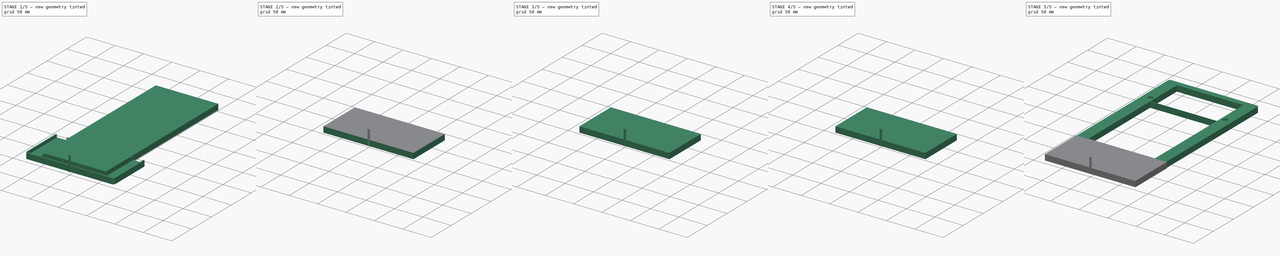
[diagram: build sequence overview — one tinted view per stage of 5, left to right]
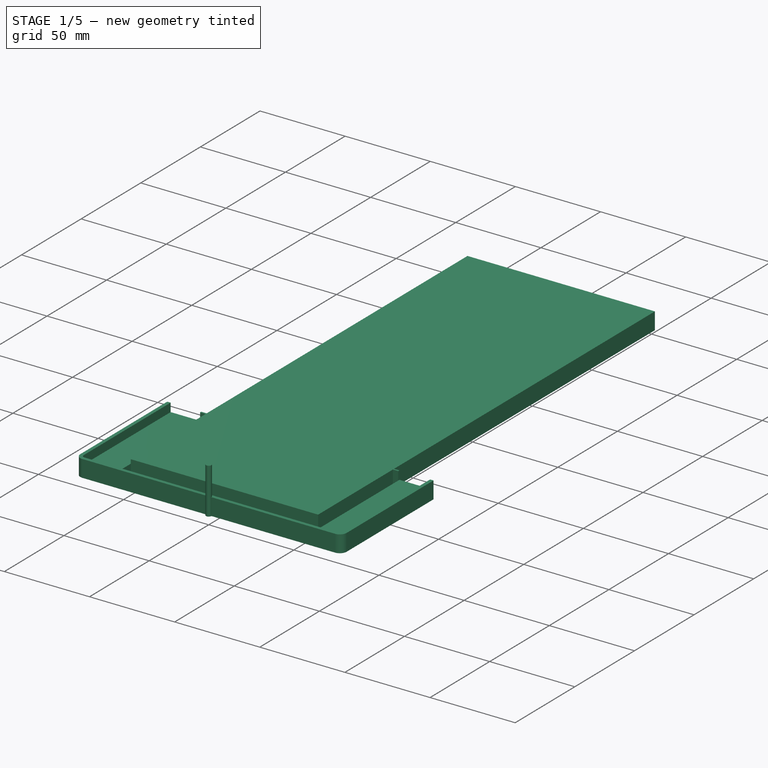
[diagram: stage 1 of 5 — iso view after this stage's code; geometry added in this stage tinted green]
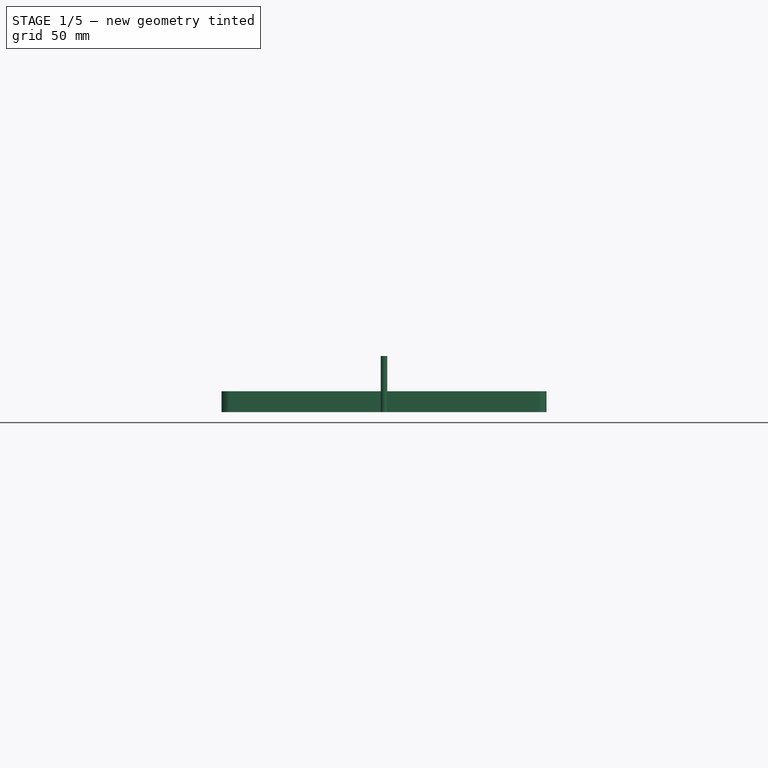
[diagram: stage 1 of 5 — front view after this stage's code; geometry added in this stage tinted green]
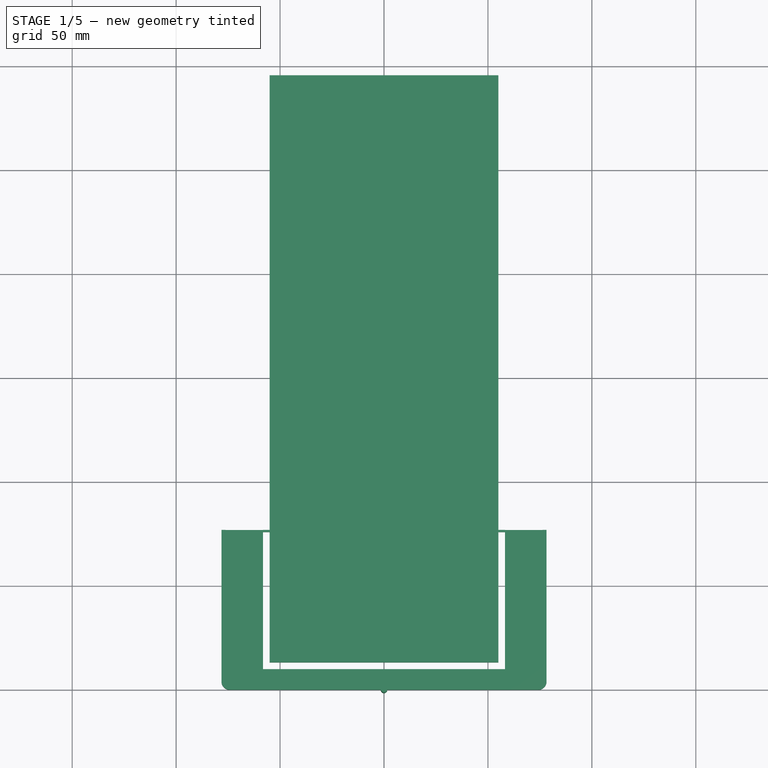
[diagram: stage 1 of 5 — top view after this stage's code; geometry added in this stage tinted green]
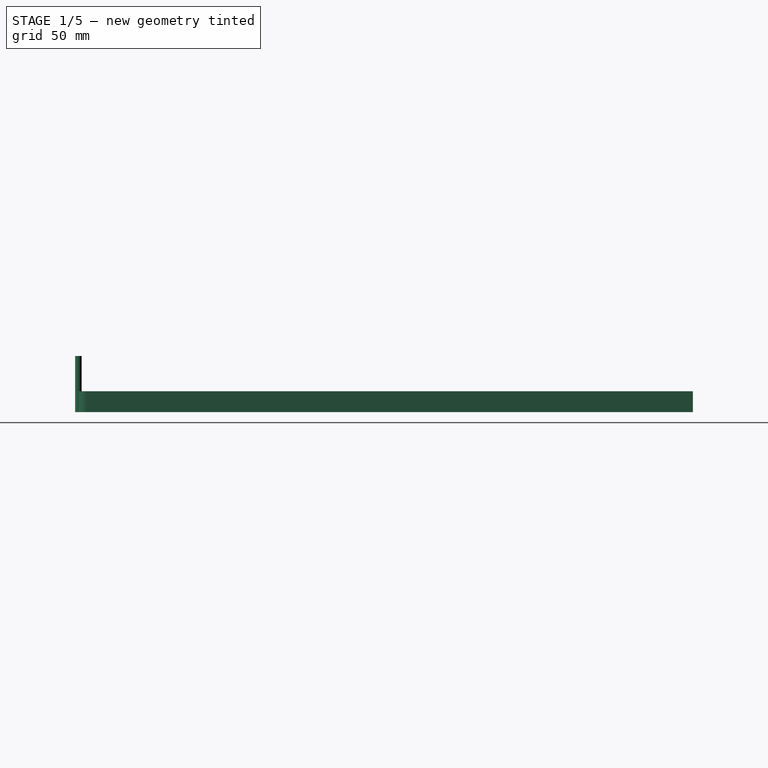
[diagram: stage 1 of 5 — right view after this stage's code; geometry added in this stage tinted green]
FCSTD DOCUMENT  (FreeCAD 0.22R36958 (Git))
Label: Frame-CNC-back
License: All rights reserved
LicenseURL: http://en.wikipedia.org/wiki/All_rights_reserved
objects: Part::FeaturePython×14, Path::FeaturePython×14, Sketcher::SketchObject×5, PartDesign::Pad×4, PartDesign::Body×4, App::DocumentObjectGroup×3, Part::Part2DObjectPython×2, Spreadsheet::Sheet×1, PartDesign::Pocket×1, PartDesign::AdditiveBox×1, App::FeaturePython×1, App::MeasureDistance×1
note: 38 computed .brp shape members not serialized (recipe doc carries the construction recipe); baked Part::Feature solids carry a one-line shape summary decoded from their .brp

FEATURE [PartDesign::Body] Body003
  Group = -> [Sketch003,Pad003]
  Origin = -> Origin003
  Tip = -> Pad003
FEATURE [PartDesign::Pad] Pad
  Direction = (0,0,1)
  Length = 10
  Length2 = 10
  Profile = -> Sketch
  ReferenceAxis = -> Sketch [N_Axis]
  Suppressed = false
  Type = 0
FEATURE [Sketcher::SketchObject] Sketch004
  AttachmentSupport = -> [Pad]
  ExternalGeometry = -> [Pad]
  FullyConstrained = true
  MapMode = 5
  Placement = pos=(0,0,10) rot=(0,0,1;0rad)
  expr: Constraints[22] = <<vars>>.back_edge
  expr: Constraints[23] = <<vars>>.back_edge
  expr: Constraints[29] = <<vars>>.back_edge
  sketch-geometry (10):
    g0: LineSegment StartX=-58.2 StartY=76.9 StartZ=0 EndX=-76.2 EndY=76.9 EndZ=0
    g1: LineSegment StartX=-76.2 StartY=76.9 StartZ=0 EndX=-76.2 EndY=4 EndZ=0
    g2: ArcOfCircle CenterX=-74.2 CenterY=4 CenterZ=0 NormalX=0 NormalY=0 NormalZ=1 AngleXU=0 Radius=2 StartAngle=3.14159 EndAngle=4.71239
    g3: LineSegment StartX=-74.2 StartY=2 StartZ=0 EndX=74.2 EndY=2 EndZ=0
    g4: ArcOfCircle CenterX=74.2 CenterY=4 CenterZ=0 NormalX=0 NormalY=0 NormalZ=1 AngleXU=0 Radius=2 StartAngle=4.71239 EndAngle=6.28319
    g5: LineSegment StartX=76.2 StartY=4 StartZ=0 EndX=76.2 EndY=76.9 EndZ=0
    g6: LineSegment StartX=76.2 StartY=76.9 StartZ=0 EndX=58.2 EndY=76.9 EndZ=0
    g7: LineSegment StartX=58.2 StartY=76.9 StartZ=0 EndX=58.2 EndY=10 EndZ=0
    g8: LineSegment StartX=58.2 StartY=10 StartZ=0 EndX=-58.2 EndY=10 EndZ=0
    g9: LineSegment StartX=-58.2 StartY=10 StartZ=0 EndX=-58.2 EndY=76.9 EndZ=0
  constraints (30):
    c: Horizontal(g0)
    c: Coincident(g0,g1)
    c: Vertical(g1)
    c: Tangent(g1,g2) = -1.5708
    c: Coincident(g2,g3)
    c: Horizontal(g3)
    c: Tangent(g3,g4) = -1.5708
    c: Coincident(g4,g5)
    c: Vertical(g5)
    c: Coincident(g5,g6)
    c: Horizontal(g6)
    c: Coincident(g6,g7)
    c: Vertical(g7)
    c: Coincident(g7,g8)
    c: Horizontal(g8)
    c: Coincident(g8,g9)
    c: Coincident(g9,g0)
    c: Vertical(g9)
    c: Horizontal(g1,g-5)
    c: Vertical(g2,g-6)
    c: Vertical(g-7,g3)
    c: Horizontal(g-8,g4)
    c: Distance(g-6,g2) = 2
    c: Distance(g-8,g4) = 2
    c: PointOnObject(g6,g-3)
    c: PointOnObject(g6,g-9)
    c: PointOnObject(g0,g-11)
    c: PointOnObject(g0,g-3)
    c: PointOnObject(g8,g-10)
    c: Distance(g-5,g1) = 2
FEATURE [PartDesign::Pocket] Pocket
  BaseFeature = -> Pad
  Direction = (0,0,-1)
  Length = 5
  Length2 = 5
  Profile = -> Sketch004
  ReferenceAxis = -> Sketch004 [N_Axis]
  Suppressed = false
  Type = 0
FEATURE [PartDesign::AdditiveBox] Box
  AttacherType = Attacher::AttachEngine3D
  AttachmentOffset = pos=(-55.025,13.175,0) rot=(0,0,1;0rad)
  AttachmentSupport = -> [XY_Plane]
  BaseFeature = -> Pocket
  Height = 10
  Length = 110.05
  MapMode = 5
  Placement = pos=(-55.025,13.175,0) rot=(0,0,1;0rad)
  Suppressed = false
  Width = 282.45
  expr: .AttachmentOffset.Base.x = -<<vars>>.width / 2 + <<vars>>.top_banner_width + <<vars>>.bit_size
  expr: .AttachmentOffset.Base.y = <<vars>>.reference_point - <<vars>>.length + <<vars>>.side_width + <<vars>>.bit_size
  expr: Height = <<vars>>.height
  expr: Length = <<vars>>.width - <<vars>>.top_banner_width - <<vars>>.bottom_banner_width - <<vars>>.bit_size * 2
  expr: Width = <<vars>>.length - <<vars>>.side_width * 2 - <<vars>>.bit_size * 2
FEATURE [Path::FeaturePython] __0mm_Endmill003  label="3.0mm_Endmill001"  # Path/CAM operation (typed FeaturePython)
  HorizFeed = 3.33333
  HorizRapid = 0
  SpindleDir = 0
  SpindleSpeed = 2000
  Tool = -> ToolBit010
  ToolNumber = 13
  VertFeed = 3.33333
  VertRapid = 0
  expr: HorizRapid = SetupSheet.HorizRapid
  expr: VertRapid = SetupSheet.VertRapid
FEATURE [Part::FeaturePython] ToolBit011  label="3.175mm_endmill009"  # Path/CAM toolbit (typed FeaturePython)
  BitPropertyNames = Chipload | CuttingEdgeHeight | Diameter | Flutes | Length | Material | ShankDiameter | SpindleDirection
  BitShape = /private/var/folders/4z/cpn_82wx3qz0m4lfqxz9fps80000gn/T/AppTranslocation/C237E315-4526-4725-9325-06C9AD00EF50/d/FreeCAD.app/Contents/Resources/Mod/CAM/Tools/Shape/endmill.fcstd
  Chipload = 0
  CuttingEdgeHeight = 10
  Diameter = 3.17
  Flutes = 0
  Length = 27
  Material = 0
  ShankDiameter = 3.17
  ShapeName = endmill
  SpindleDirection = 0
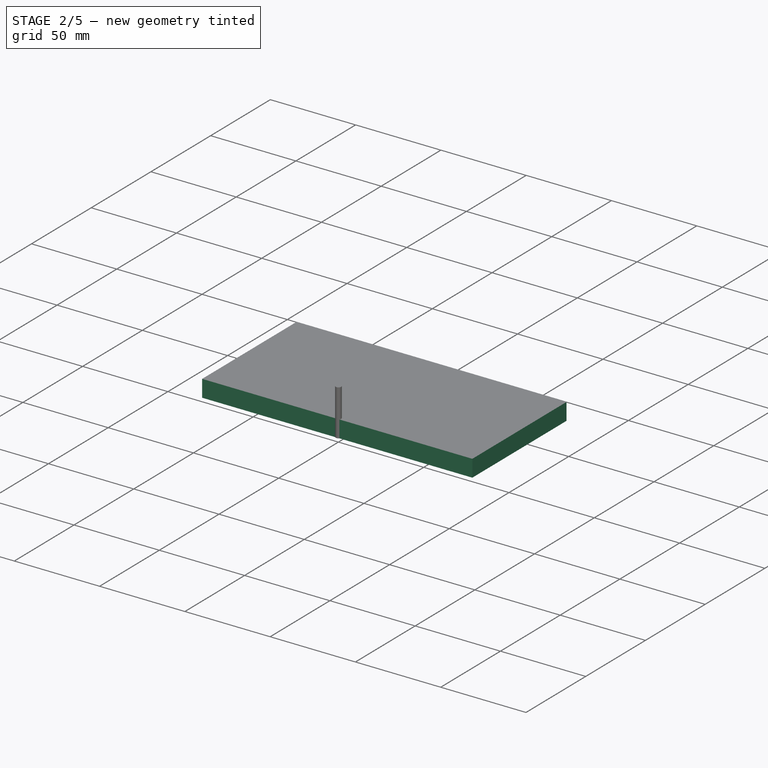
[diagram: stage 2 of 5 — iso view after this stage's code; geometry added in this stage tinted green]
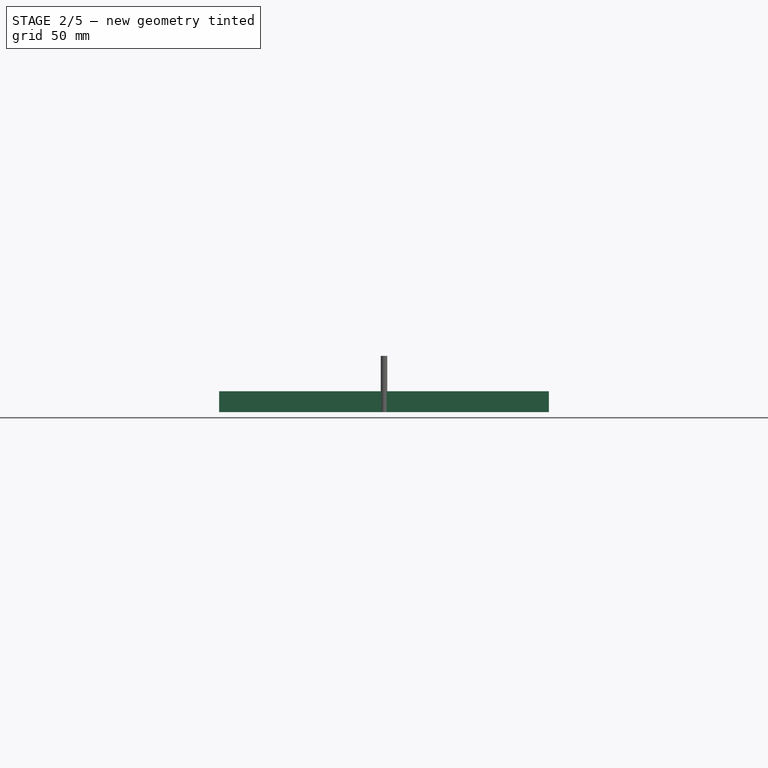
[diagram: stage 2 of 5 — front view after this stage's code; geometry added in this stage tinted green]
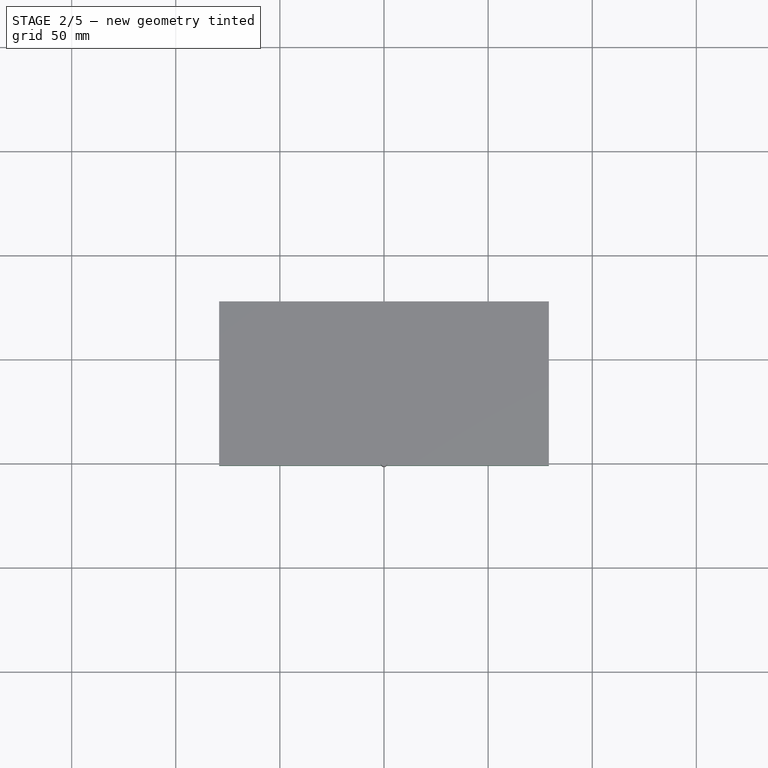
[diagram: stage 2 of 5 — top view after this stage's code; geometry added in this stage tinted green]
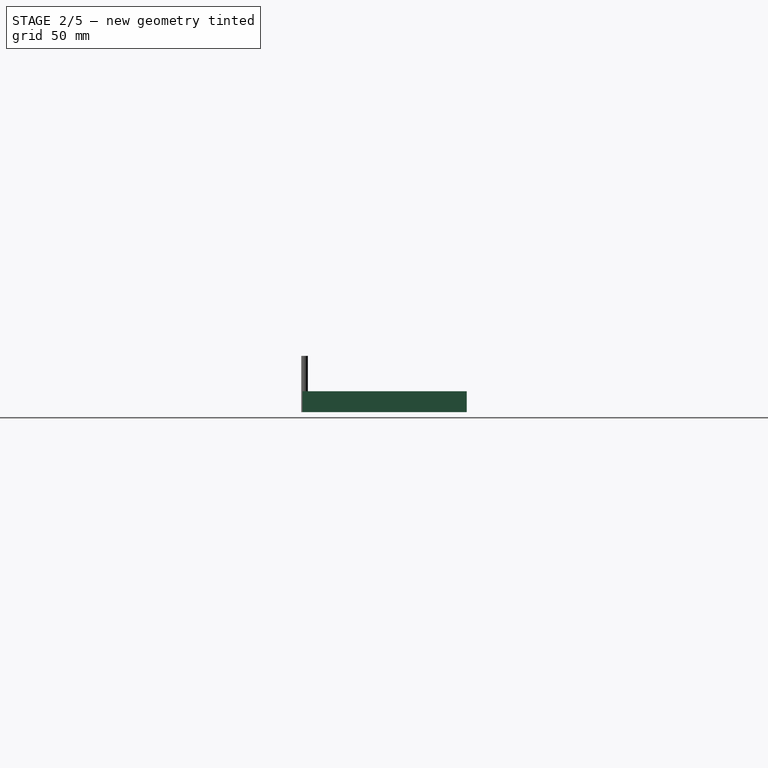
[diagram: stage 2 of 5 — right view after this stage's code; geometry added in this stage tinted green]
FEATURE [PartDesign::Body] Body
  Group = -> [Sketch,Pad,Sketch004,Pocket,Box]
  Origin = -> Origin
  Tip = -> Pocket
FEATURE [App::FeaturePython] SetupSheet  # Path/CAM operation (typed FeaturePython)
  ClearanceHeightExpression = OpStockZMax+SetupSheet.ClearanceHeightOffset
  ClearanceHeightOffset = 5
  CoolantMode = 0
  CoolantModes = None | Flood | Mist
  FinalDepthExpression = OpFinalDepth
  HorizRapid = 0
  SafeHeightExpression = OpStockZMax+SetupSheet.SafeHeightOffset
  SafeHeightOffset = 3
  StartDepthExpression = OpStartDepth
  StepDownExpression = OpToolDiameter
  VertRapid = 0
FEATURE [Part::FeaturePython] Clone  label="Model-Body"  # Draft clone (typed FeaturePython)
  AttacherType = Attacher::AttachEngine3D
  Fuse = false
  Objects = -> [Body]
  PathResource = Model
  Scale = (1,1,1)
FEATURE [Path::FeaturePython] __6mm_Endmill  label="2.6mm_Endmill001"  # Path/CAM operation (typed FeaturePython)
  HorizFeed = 3.33333
  HorizRapid = 0
  SpindleDir = 0
  SpindleSpeed = 2000
  Tool = -> ToolBit008
  ToolNumber = 11
  VertFeed = 3.33333
  VertRapid = 0
  expr: HorizRapid = SetupSheet.HorizRapid
  expr: VertRapid = SetupSheet.VertRapid
FEATURE [Part::FeaturePython] ToolBit009  label="2.8mm_Endmill"  # Path/CAM toolbit (typed FeaturePython)
  BitPropertyNames = Chipload | CuttingEdgeHeight | Diameter | Flutes | Length | Material | ShankDiameter | SpindleDirection
  BitShape = /private/var/folders/4z/cpn_82wx3qz0m4lfqxz9fps80000gn/T/AppTranslocation/C237E315-4526-4725-9325-06C9AD00EF50/d/FreeCAD.app/Contents/Resources/Mod/CAM/Tools/Shape/endmill.fcstd
  Chipload = 0
  CuttingEdgeHeight = 10
  Diameter = 2.8
  Flutes = 0
  Length = 27
  Material = 0
  ShankDiameter = 3.17
  ShapeName = endmill
  SpindleDirection = 0
FEATURE [Path::FeaturePython] __8mm_Endmill003  label="2.8mm_Endmill001"  # Path/CAM operation (typed FeaturePython)
  HorizFeed = 3.33333
  HorizRapid = 0
  SpindleDir = 0
  SpindleSpeed = 2000
  Tool = -> ToolBit009
  ToolNumber = 12
  VertFeed = 3.33333
  VertRapid = 0
  expr: HorizRapid = SetupSheet.HorizRapid
  expr: VertRapid = SetupSheet.VertRapid
FEATURE [Part::FeaturePython] ToolBit010  label="3.0mm_Endmill"  # Path/CAM toolbit (typed FeaturePython)
  BitPropertyNames = Chipload | CuttingEdgeHeight | Diameter | Flutes | Length | Material | ShankDiameter | SpindleDirection
  BitShape = /private/var/folders/4z/cpn_82wx3qz0m4lfqxz9fps80000gn/T/AppTranslocation/C237E315-4526-4725-9325-06C9AD00EF50/d/FreeCAD.app/Contents/Resources/Mod/CAM/Tools/Shape/endmill.fcstd
  Chipload = 0
  CuttingEdgeHeight = 10
  Diameter = 3
  Flutes = 0
  Length = 27
  Material = 0
  ShankDiameter = 3.17
  ShapeName = endmill
  SpindleDirection = 0
FEATURE [Path::FeaturePython] __175mm_endmill007  label="3.175mm_endmill008"  # Path/CAM operation (typed FeaturePython)
  HorizFeed = 3.33333
  HorizRapid = 0
  SpindleDir = 0
  SpindleSpeed = 2000
  Tool = -> ToolBit011
  ToolNumber = 6
  VertFeed = 3.33333
  VertRapid = 0
  expr: HorizRapid = SetupSheet.HorizRapid
  expr: VertRapid = SetupSheet.VertRapid
FEATURE [App::DocumentObjectGroup] Tools
  Group = -> [__8mm_Endmill001,__0mm_Endmill001,__2mm_endmill001,__4mm_Endmill001,__8mm_Endmill002,__0mm_Endmill002,__2mm_Endmill,__4mm_Endmill002,__6mm_Endmill,__8mm_Endmill003,__0mm_Endmill003,__175mm_endmill007]
FEATURE [Part::FeaturePython] Stock  # WARN: FeaturePython — macro-defined, semantics opaque (R4)
  Base = -> Model
  ExtXneg = 1
  ExtXpos = 1
  ExtYneg = 1
  ExtYpos = 1
  ExtZneg = 0
  ExtZpos = 0
  Placement = pos=(-78.2,1e-14,0) rot=(0,0,1;0rad)
  StockType = FromBase
FEATURE [Path::FeaturePython] Pocket_Shape  # Path/CAM operation (typed FeaturePython)
  Active = true
  AreaParams:
    Tolerance = 1e-07
    FitArcs = True
    Simplify = False
    CleanDistance = 0.0
    Accuracy = 0.01
    Unit = 1.0
    MinArcPoints = 4
    MaxArcPoints = 100
    ClipperScale = 10000000.0
    Fill = 0
    Coplanar = 0
    Reorient = True
    Outline = False
    Explode = False
    OpenMode = 0
    Deflection = 0.01
    SubjectFill = 0
    ClipFill = 0
    Offset = 0.0
    ExtraPass = 0
    Stepover = 0.0
    LastStepover = 0.0
    JoinType = 0
    EndType = 0
    MiterLimit = 2.0
    RoundPrecision = 0.0
    PocketMode = 4
    ToolRadius = 1.585
    PocketExtraOffset = 0.0
    PocketStepover = 3.17
    PocketLastStepover = 0.0
    FromCenter = True
    Angle = 45.0
    AngleShift = 0.0
    Shift = 0.0
    Thicken = False
    SectionCount = -1
    Stepdown = 1.0
    SectionOffset = 0.0
    SectionTolerance = 1e-06
    SectionMode = 2
    Project = False
  Base = -> [Clone]
  ClearanceHeight = 15
  CoolantMode = 0
  CutMode = 0
  CycleTime = 00:19:23
  ExtensionCorners = true
  ExtensionLengthDefault = 1.585
  ExtraOffset = 0
  FinalDepth = 5
  FinishDepth = 0
  KeepToolDown = false
  MinTravel = false
  OffsetPattern = 2
  OpFinalDepth = 5
  OpStartDepth = 10
  OpStockZMax = 10
  OpStockZMin = 0
  OpToolDiameter = 3.17
  PathParams:
    orientation = 1
    feedrate = 3.3333333333333335
    feedrate_v = 3.3333333333333335
    verbose = True
    resume_height = 13.0
    retraction = 15.0
    return_end = True
    preamble = False
    sort_mode = 0
  PocketLastStepOver = 0
  SafeHeight = 13
  SplitArcs = false
  StartAt = 0
  StartDepth = 10
  StartPoint = (0,0,0)
  StepDown = 3.17
  StepOver = 100
  ToolController = -> __175mm_endmill007
  UseOutline = false
  UseRestMachining = false
  UseStartPoint = false
  ZigZagAngle = 45
  expr: ClearanceHeight = OpStockZMax + SetupSheet.ClearanceHeightOffset
  expr: ExtensionLengthDefault = OpToolDiameter / 2
  expr: FinalDepth = OpFinalDepth
  expr: SafeHeight = OpStockZMax + SetupSheet.SafeHeightOffset
  expr: StartDepth = OpStartDepth
  expr: StepDown = OpToolDiameter
FEATURE [App::DocumentObjectGroup] Operations
  Group = -> [Pocket_Shape]
FEATURE [Path::FeaturePython] Job  # Path/CAM operation (typed FeaturePython)
  CycleTime = 00:19:23
  Fixtures = G54
  GeometryTolerance = 0.01
  JobType = 0
  Model = -> Model
  Operations = -> Operations
  OrderOutputBy = 0
  PostProcessor = 1
  SetupSheet = -> SetupSheet
  SplitOutput = false
  Stock = -> Stock
  Tools = -> Tools
FEATURE [App::MeasureDistance] Distance  label="Distance: 152.55 mm"
  Distance = 152.546
  P1 = (-76.2,25.5516,10)
  P2 = (76.2,18.884,10)
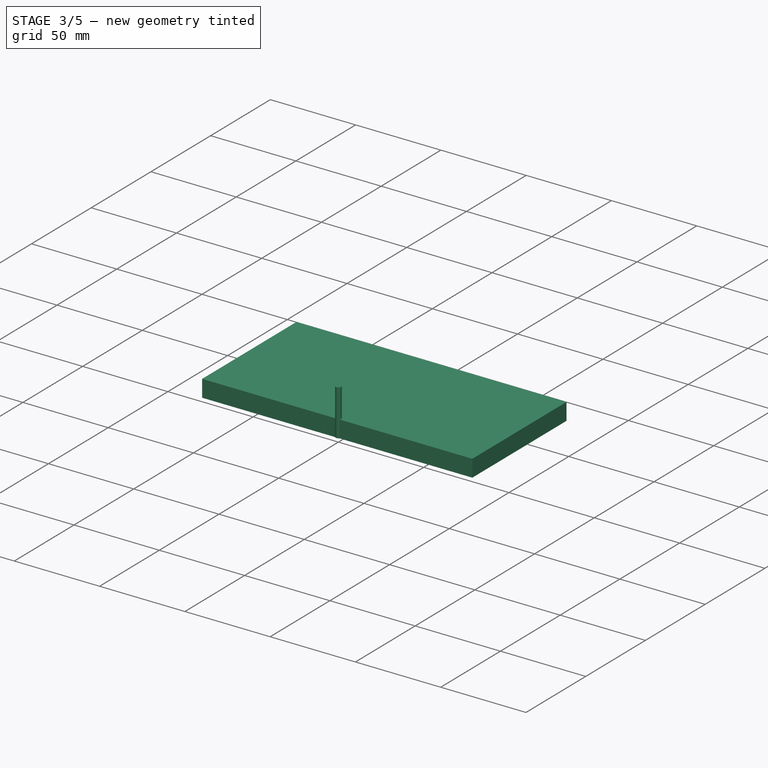
[diagram: stage 3 of 5 — iso view after this stage's code; geometry added in this stage tinted green]
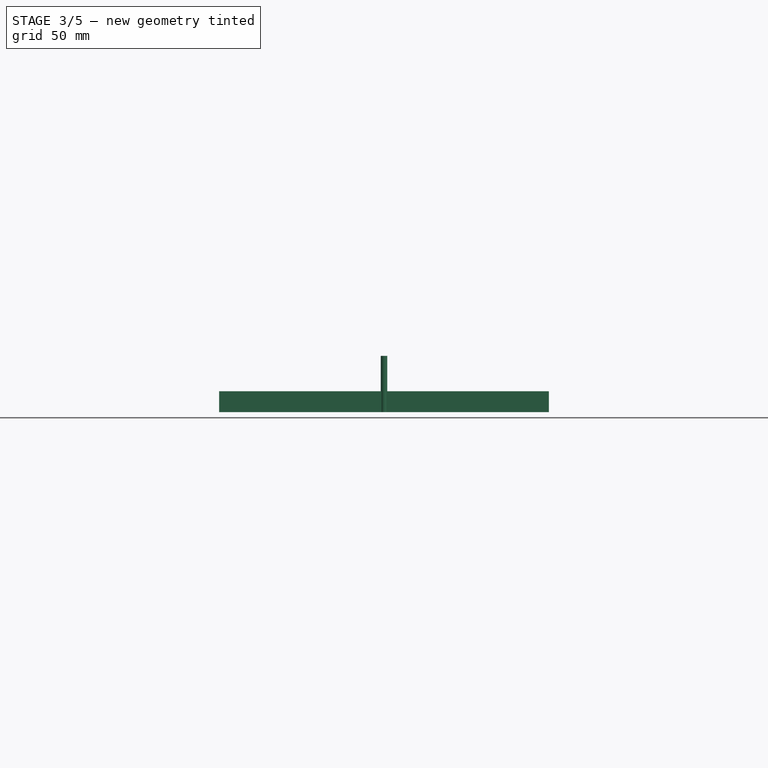
[diagram: stage 3 of 5 — front view after this stage's code; geometry added in this stage tinted green]
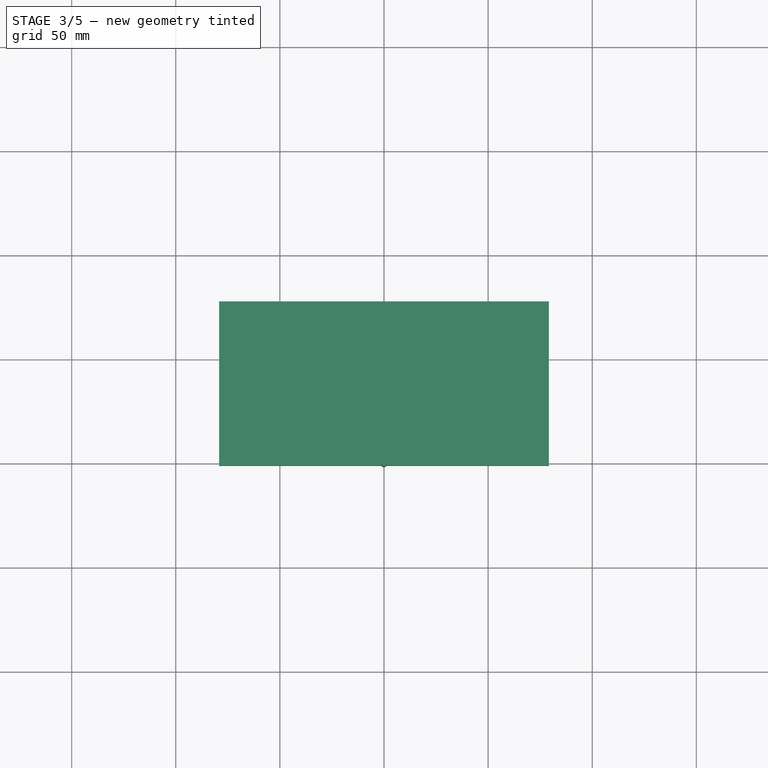
[diagram: stage 3 of 5 — top view after this stage's code; geometry added in this stage tinted green]
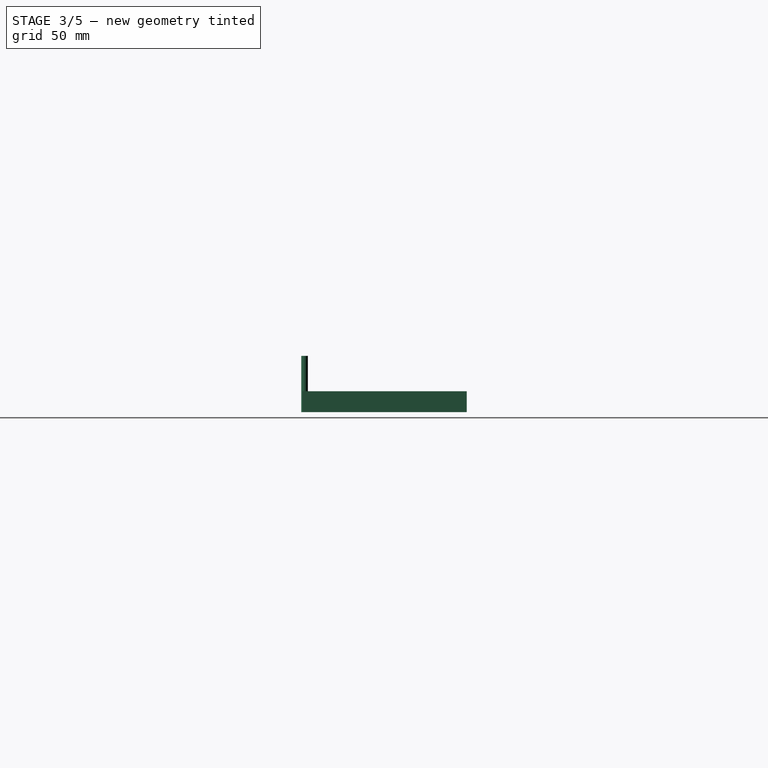
[diagram: stage 3 of 5 — right view after this stage's code; geometry added in this stage tinted green]
FEATURE [Path::FeaturePython] __8mm_Endmill002  label="1.8mm_Endmill001"  # Path/CAM operation (typed FeaturePython)
  HorizFeed = 3.33333
  HorizRapid = 0
  SpindleDir = 0
  SpindleSpeed = 2000
  Tool = -> ToolBit004
  ToolNumber = 7
  VertFeed = 3.33333
  VertRapid = 0
  expr: HorizRapid = SetupSheet.HorizRapid
  expr: VertRapid = SetupSheet.VertRapid
FEATURE [Part::FeaturePython] ToolBit005  label="2.0mm_Endmill"  # Path/CAM toolbit (typed FeaturePython)
  BitPropertyNames = Chipload | CuttingEdgeHeight | Diameter | Flutes | Length | Material | ShankDiameter | SpindleDirection
  BitShape = /private/var/folders/4z/cpn_82wx3qz0m4lfqxz9fps80000gn/T/AppTranslocation/C237E315-4526-4725-9325-06C9AD00EF50/d/FreeCAD.app/Contents/Resources/Mod/CAM/Tools/Shape/endmill.fcstd
  Chipload = 0
  CuttingEdgeHeight = 10
  Diameter = 2
  Flutes = 0
  Length = 27
  Material = 0
  ShankDiameter = 3.17
  ShapeName = endmill
  SpindleDirection = 0
FEATURE [Path::FeaturePython] __0mm_Endmill002  label="2.0mm_Endmill001"  # Path/CAM operation (typed FeaturePython)
  HorizFeed = 3.33333
  HorizRapid = 0
  SpindleDir = 0
  SpindleSpeed = 2000
  Tool = -> ToolBit005
  ToolNumber = 8
  VertFeed = 3.33333
  VertRapid = 0
  expr: HorizRapid = SetupSheet.HorizRapid
  expr: VertRapid = SetupSheet.VertRapid
FEATURE [Part::FeaturePython] ToolBit006  label="2.2mm_Endmill"  # Path/CAM toolbit (typed FeaturePython)
  BitPropertyNames = Chipload | CuttingEdgeHeight | Diameter | Flutes | Length | Material | ShankDiameter | SpindleDirection
  BitShape = /private/var/folders/4z/cpn_82wx3qz0m4lfqxz9fps80000gn/T/AppTranslocation/C237E315-4526-4725-9325-06C9AD00EF50/d/FreeCAD.app/Contents/Resources/Mod/CAM/Tools/Shape/endmill.fcstd
  Chipload = 0
  CuttingEdgeHeight = 10
  Diameter = 2.2
  Flutes = 0
  Length = 27
  Material = 0
  ShankDiameter = 3.17
  ShapeName = endmill
  SpindleDirection = 0
FEATURE [Path::FeaturePython] __2mm_Endmill  label="2.2mm_Endmill001"  # Path/CAM operation (typed FeaturePython)
  HorizFeed = 3.33333
  HorizRapid = 0
  SpindleDir = 0
  SpindleSpeed = 2000
  Tool = -> ToolBit006
  ToolNumber = 9
  VertFeed = 3.33333
  VertRapid = 0
  expr: HorizRapid = SetupSheet.HorizRapid
  expr: VertRapid = SetupSheet.VertRapid
FEATURE [Part::FeaturePython] ToolBit007  label="2.4mm_Endmill"  # Path/CAM toolbit (typed FeaturePython)
  BitPropertyNames = Chipload | CuttingEdgeHeight | Diameter | Flutes | Length | Material | ShankDiameter | SpindleDirection
  BitShape = /private/var/folders/4z/cpn_82wx3qz0m4lfqxz9fps80000gn/T/AppTranslocation/C237E315-4526-4725-9325-06C9AD00EF50/d/FreeCAD.app/Contents/Resources/Mod/CAM/Tools/Shape/endmill.fcstd
  Chipload = 0
  CuttingEdgeHeight = 10
  Diameter = 2.4
  Flutes = 0
  Length = 27
  Material = 0
  ShankDiameter = 3.17
  ShapeName = endmill
  SpindleDirection = 0
FEATURE [Path::FeaturePython] __4mm_Endmill002  label="2.4mm_Endmill001"  # Path/CAM operation (typed FeaturePython)
  HorizFeed = 3.33333
  HorizRapid = 0
  SpindleDir = 0
  SpindleSpeed = 2000
  Tool = -> ToolBit007
  ToolNumber = 10
  VertFeed = 3.33333
  VertRapid = 0
  expr: HorizRapid = SetupSheet.HorizRapid
  expr: VertRapid = SetupSheet.VertRapid
FEATURE [Part::FeaturePython] ToolBit008  label="2.6mm_Endmill"  # Path/CAM toolbit (typed FeaturePython)
  BitPropertyNames = Chipload | CuttingEdgeHeight | Diameter | Flutes | Length | Material | ShankDiameter | SpindleDirection
  BitShape = /private/var/folders/4z/cpn_82wx3qz0m4lfqxz9fps80000gn/T/AppTranslocation/C237E315-4526-4725-9325-06C9AD00EF50/d/FreeCAD.app/Contents/Resources/Mod/CAM/Tools/Shape/endmill.fcstd
  Chipload = 0
  CuttingEdgeHeight = 10
  Diameter = 2.6
  Flutes = 0
  Length = 27
  Material = 0
  ShankDiameter = 3.17
  ShapeName = endmill
  SpindleDirection = 0
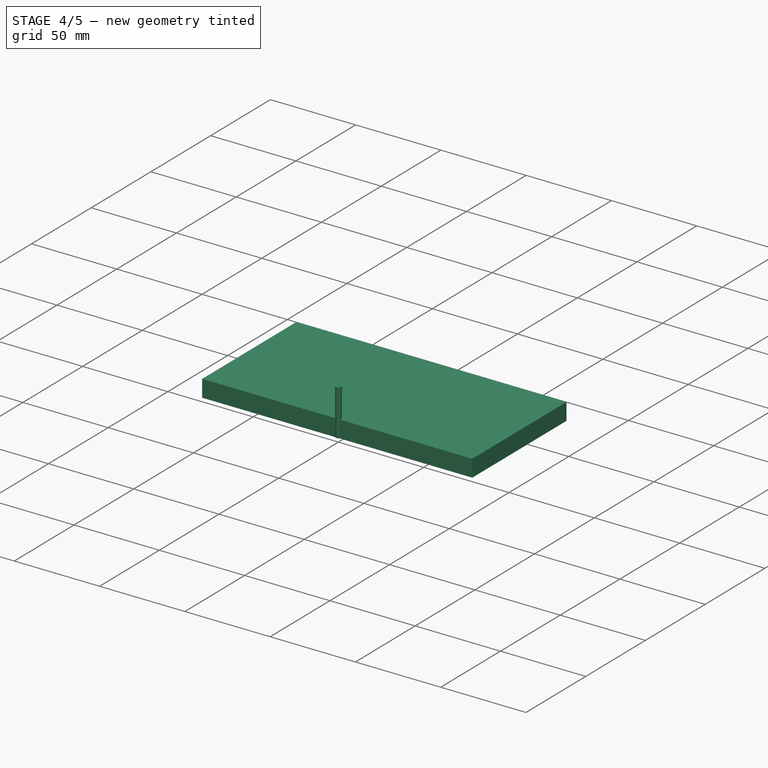
[diagram: stage 4 of 5 — iso view after this stage's code; geometry added in this stage tinted green]
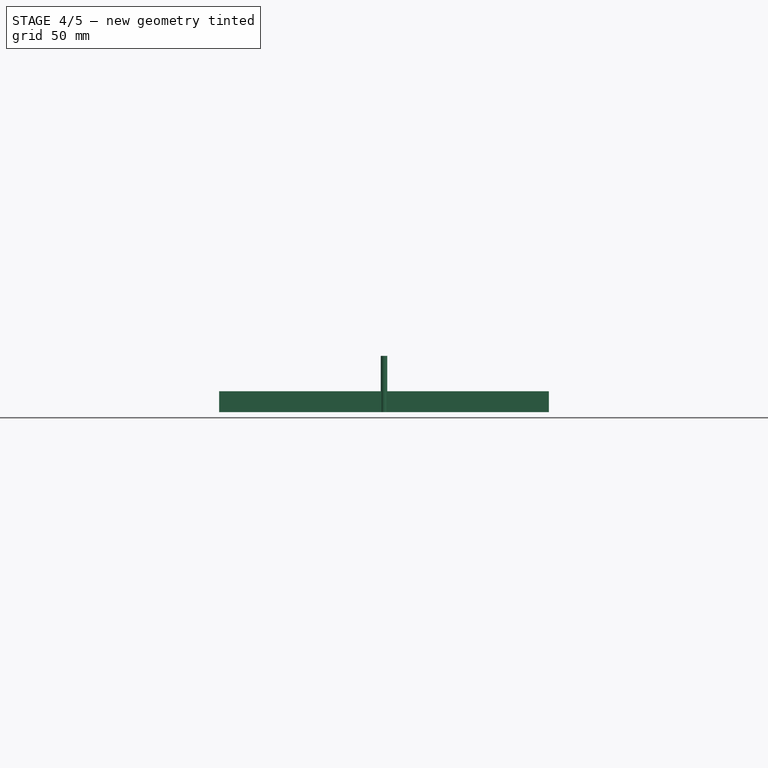
[diagram: stage 4 of 5 — front view after this stage's code; geometry added in this stage tinted green]
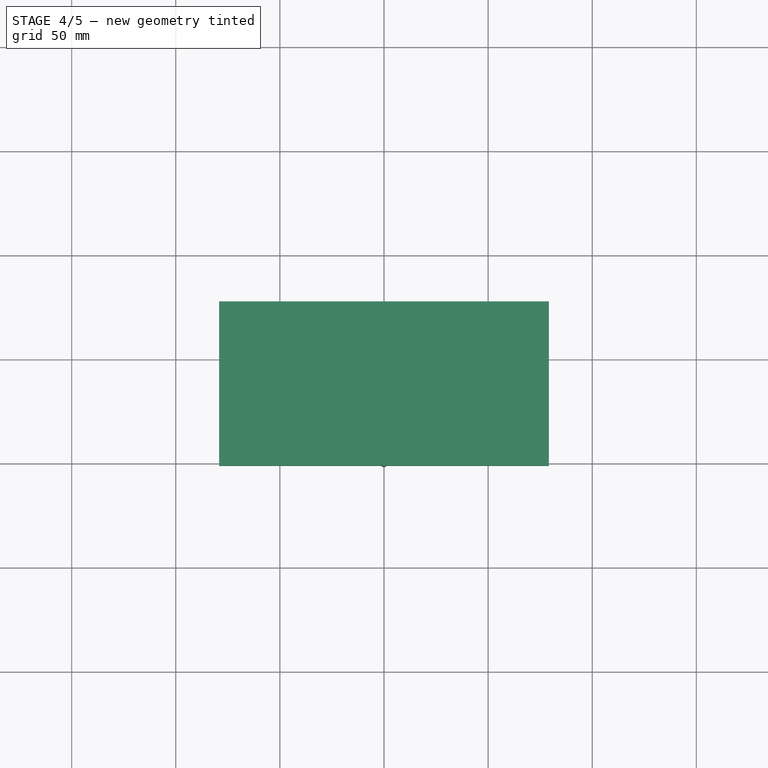
[diagram: stage 4 of 5 — top view after this stage's code; geometry added in this stage tinted green]
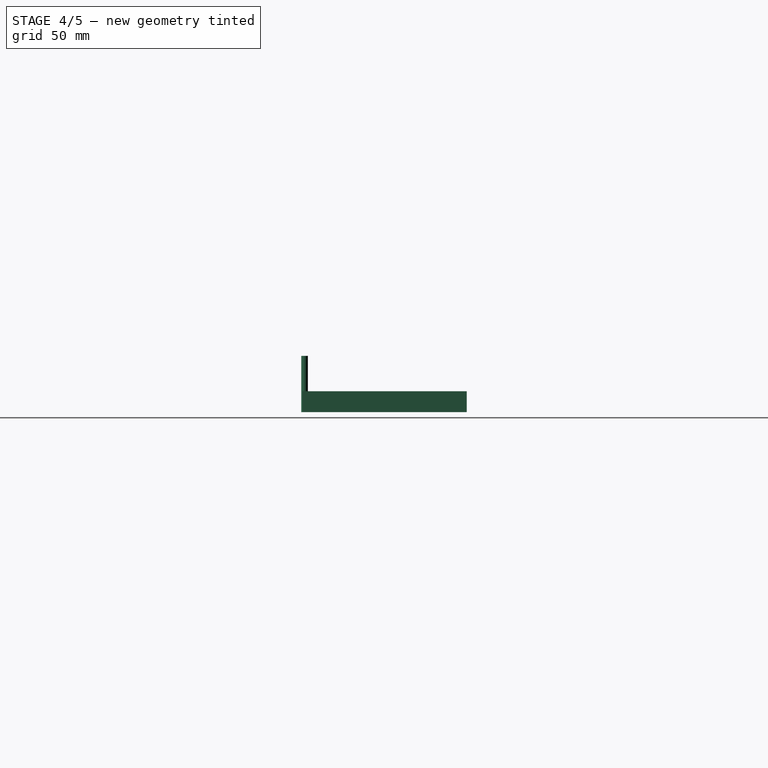
[diagram: stage 4 of 5 — right view after this stage's code; geometry added in this stage tinted green]
FEATURE [Path::FeaturePython] __8mm_Endmill001  label="0.8mm_Endmill002"  # Path/CAM operation (typed FeaturePython)
  HorizFeed = 3.33333
  HorizRapid = 0
  SpindleDir = 0
  SpindleSpeed = 2000
  Tool = -> ToolBit
  ToolNumber = 2
  VertFeed = 3.33333
  VertRapid = 0
  expr: HorizRapid = SetupSheet.HorizRapid
  expr: VertRapid = SetupSheet.VertRapid
FEATURE [Part::FeaturePython] ToolBit001  label="1.0mm_Endmill003"  # Path/CAM toolbit (typed FeaturePython)
  BitPropertyNames = Chipload | CuttingEdgeHeight | Diameter | Flutes | Length | Material | ShankDiameter | SpindleDirection
  BitShape = /private/var/folders/4z/cpn_82wx3qz0m4lfqxz9fps80000gn/T/AppTranslocation/C237E315-4526-4725-9325-06C9AD00EF50/d/FreeCAD.app/Contents/Resources/Mod/CAM/Tools/Shape/endmill.fcstd
  Chipload = 0
  CuttingEdgeHeight = 10
  Diameter = 1
  Flutes = 0
  Length = 27
  Material = 0
  ShankDiameter = 3.17
  ShapeName = endmill
  SpindleDirection = 0
FEATURE [Path::FeaturePython] __0mm_Endmill001  label="1.0mm_Endmill002"  # Path/CAM operation (typed FeaturePython)
  HorizFeed = 3.33333
  HorizRapid = 0
  SpindleDir = 0
  SpindleSpeed = 2000
  Tool = -> ToolBit001
  ToolNumber = 3
  VertFeed = 3.33333
  VertRapid = 0
  expr: HorizRapid = SetupSheet.HorizRapid
  expr: VertRapid = SetupSheet.VertRapid
FEATURE [Part::FeaturePython] ToolBit002  label="1.2mm_endmill003"  # Path/CAM toolbit (typed FeaturePython)
  BitPropertyNames = Chipload | CuttingEdgeHeight | Diameter | Flutes | Length | Material | ShankDiameter | SpindleDirection
  BitShape = /private/var/folders/4z/cpn_82wx3qz0m4lfqxz9fps80000gn/T/AppTranslocation/C237E315-4526-4725-9325-06C9AD00EF50/d/FreeCAD.app/Contents/Resources/Mod/CAM/Tools/Shape/endmill.fcstd
  Chipload = 0
  CuttingEdgeHeight = 10
  Diameter = 1.2
  Flutes = 0
  Length = 27
  Material = 0
  ShankDiameter = 3.13
  ShapeName = endmill
  SpindleDirection = 0
FEATURE [Path::FeaturePython] __2mm_endmill001  label="1.2mm_endmill002"  # Path/CAM operation (typed FeaturePython)
  HorizFeed = 3.33333
  HorizRapid = 0
  SpindleDir = 0
  SpindleSpeed = 2000
  Tool = -> ToolBit002
  ToolNumber = 4
  VertFeed = 3.33333
  VertRapid = 0
  expr: HorizRapid = SetupSheet.HorizRapid
  expr: VertRapid = SetupSheet.VertRapid
FEATURE [Part::FeaturePython] ToolBit003  label="1.4mm_Endmill003"  # Path/CAM toolbit (typed FeaturePython)
  BitPropertyNames = Chipload | CuttingEdgeHeight | Diameter | Flutes | Length | Material | ShankDiameter | SpindleDirection
  BitShape = /private/var/folders/4z/cpn_82wx3qz0m4lfqxz9fps80000gn/T/AppTranslocation/C237E315-4526-4725-9325-06C9AD00EF50/d/FreeCAD.app/Contents/Resources/Mod/CAM/Tools/Shape/endmill.fcstd
  Chipload = 0
  CuttingEdgeHeight = 10
  Diameter = 1.4
  Flutes = 0
  Length = 27
  Material = 0
  ShankDiameter = 3.17
  ShapeName = endmill
  SpindleDirection = 0
FEATURE [Path::FeaturePython] __4mm_Endmill001  label="1.4mm_Endmill002"  # Path/CAM operation (typed FeaturePython)
  HorizFeed = 3.33333
  HorizRapid = 0
  SpindleDir = 0
  SpindleSpeed = 2000
  Tool = -> ToolBit003
  ToolNumber = 5
  VertFeed = 3.33333
  VertRapid = 0
  expr: HorizRapid = SetupSheet.HorizRapid
  expr: VertRapid = SetupSheet.VertRapid
FEATURE [Part::FeaturePython] ToolBit004  label="1.8mm_Endmill"  # Path/CAM toolbit (typed FeaturePython)
  BitPropertyNames = Chipload | CuttingEdgeHeight | Diameter | Flutes | Length | Material | ShankDiameter | SpindleDirection
  BitShape = /private/var/folders/4z/cpn_82wx3qz0m4lfqxz9fps80000gn/T/AppTranslocation/C237E315-4526-4725-9325-06C9AD00EF50/d/FreeCAD.app/Contents/Resources/Mod/CAM/Tools/Shape/endmill.fcstd
  Chipload = 0
  CuttingEdgeHeight = 10
  Diameter = 1.8
  Flutes = 0
  Length = 27
  Material = 0
  ShankDiameter = 3.17
  ShapeName = endmill
  SpindleDirection = 0
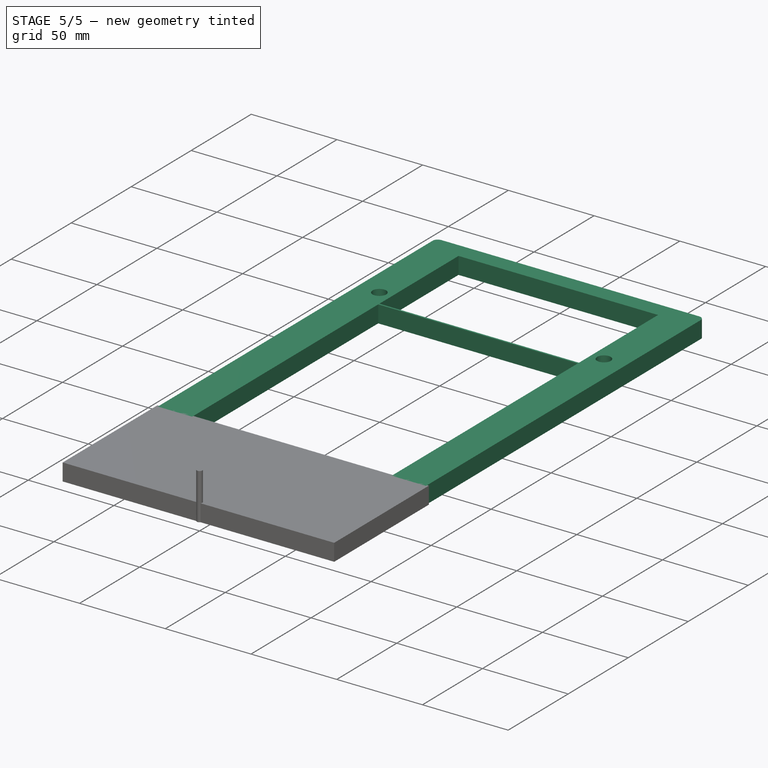
[diagram: stage 5 of 5 — iso view after this stage's code; geometry added in this stage tinted green]
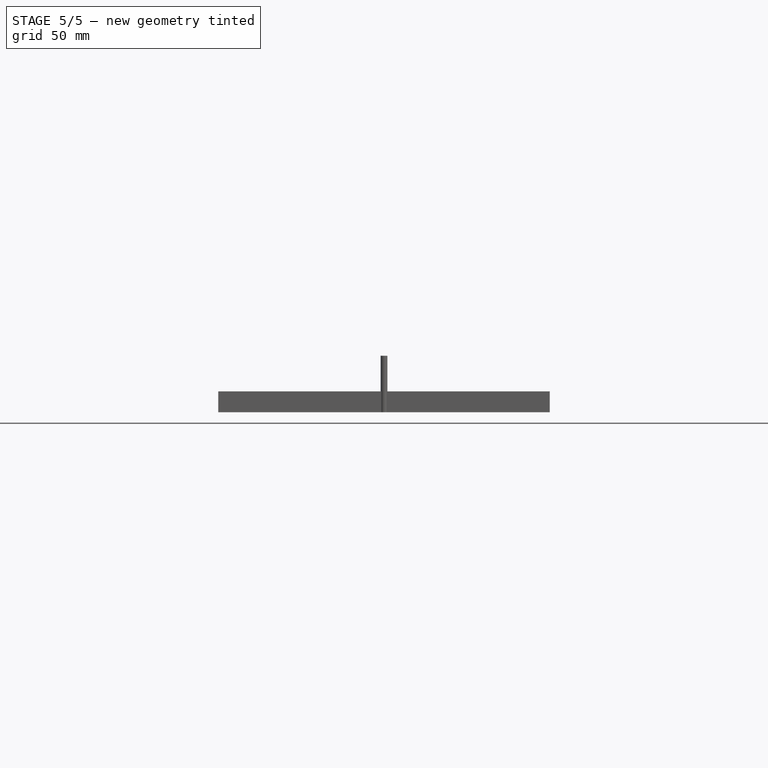
[diagram: stage 5 of 5 — front view after this stage's code; geometry added in this stage tinted green]
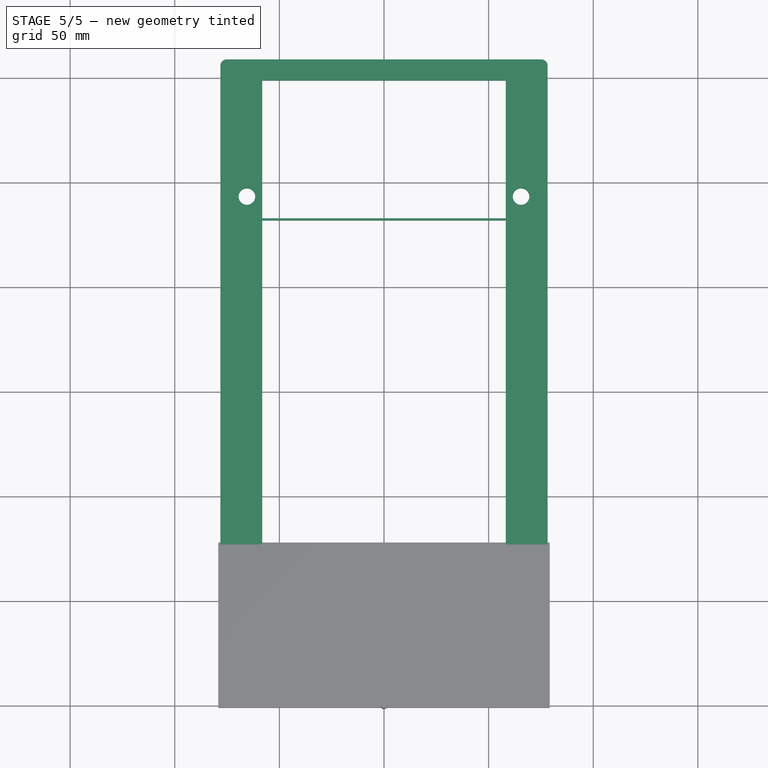
[diagram: stage 5 of 5 — top view after this stage's code; geometry added in this stage tinted green]
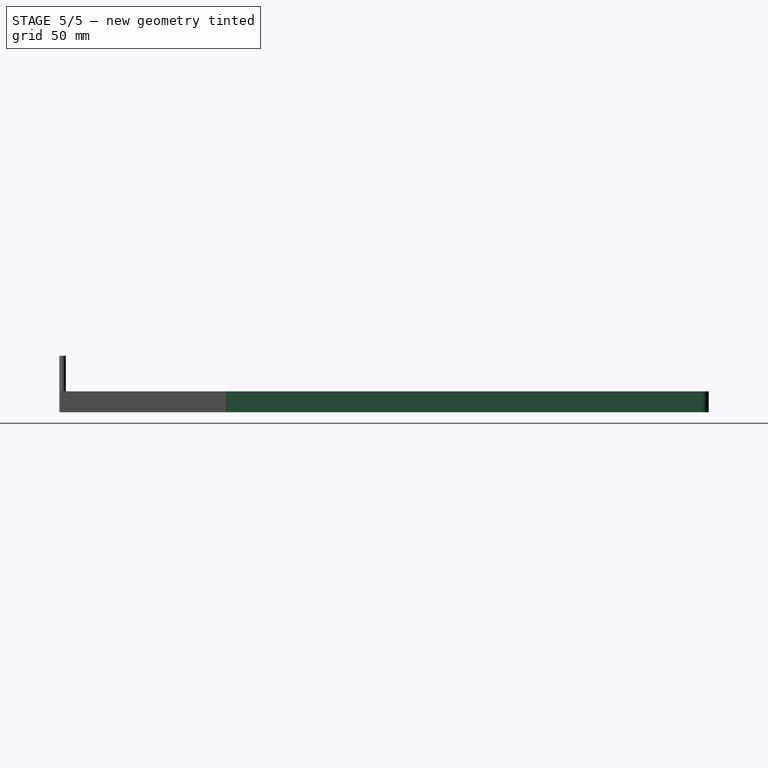
[diagram: stage 5 of 5 — right view after this stage's code; geometry added in this stage tinted green]
FEATURE [Part::Part2DObjectPython] ShapeString  # Draft 2D object (typed FeaturePython)
  FontFile = /System/Library/Fonts/Avenir.ttc
  Fuse = false
  Justification = 4
  JustificationReference = 0
  KeepLeftMargin = false
  MakeFace = true
  ObliqueAngle = 0
  Placement = pos=(-68.2,76.9,10) rot=(0,0,1;1.5708rad)
  ScaleToSize = true
  Size = 16
  String = US NAVY
  Tracking = 1
  expr: .Placement.Base.x = -(<<vars>>.width - <<vars>>.top_banner_width) / 2
  expr: .Placement.Base.y = (<<vars>>.length - <<vars>>.template_length) / 2
  expr: .Placement.Base.z = <<vars>>.height
  expr: Size = <<vars>>.font_size
FEATURE [Spreadsheet::Sheet] Spreadsheet  label="vars"
  cells = A1='Length; B1(length)=308.8; C1==B1 / 2; D1='plate hole; E1(plate_hole)=7.9375; A2='Width; B2(width)=156.4; C2=160; D2='plate hole top left distance; E2(plate_hole_vertical)==length / 2 - 177.8 / 2; A3='material length; B3(material_length)=310; D3='plate hole horizontal_right; E3(plate_hole_horizontal_right)==(length - hole_distance_horizontal) / 2; A4='material_width; B4(material_width)=160; D4='plate hole horizontal left; E4(plate_hole_horizontal_left)==length / 2 - 88.9; A5='Font Size; B5(font_size)=16; D5='hole distance horizontal; E5(hole_distance_horizontal)=177.8; A6='Top banner width; B6(top_banner_width)=20; D6='hole distance vertical; E6(hole_distance_vertical)=120.65; A7='Bottom banner witdh; B7(bottom_banner_width)=20; A8='Height; B8(height)=10; D8='back_edge; E8(back_edge)=2; A9='Guide hole distance; B9(guide_hole_length)=120; A10='Guide hole width; B10(guide_hole_width)=130; A11='hole distance from edge; B11(hole_distance_from_edge)=20; A12='hole size; B12(hole_size)=6.05; A13='template_length; B13(template_length)=155; A14='reference point; B14(reference_point)==first_cut; C14(second_cut)==(length - template_length) / 2 + template_length; D14(third_cut)==(length - template_length) / 2; E14(first_cut)==length; A15='side_width; B15(side_width)=10; A16='bit size; B16(bit_size)=3.175; A17='bridge width; B17(bridge_width)=1
FEATURE [Part::Part2DObjectPython] ShapeString001  # Draft 2D object (typed FeaturePython)
  FontFile = /System/Library/Fonts/Avenir.ttc
  Fuse = false
  Justification = 4
  JustificationReference = 0
  KeepLeftMargin = false
  MakeFace = true
  ObliqueAngle = 0
  Placement = pos=(68.2,76.9,10) rot=(0,0,1;1.5708rad)
  ScaleToSize = true
  Size = 16
  String = VETERAN
  Tracking = 0
  expr: .Placement.Base.x = (<<vars>>.width - <<vars>>.bottom_banner_width) / 2
  expr: .Placement.Base.y = (<<vars>>.length - <<vars>>.template_length) / 2
  expr: .Placement.Base.z = <<vars>>.height
  expr: Size = <<vars>>.font_size
FEATURE [Sketcher::SketchObject] Sketch
  AttachmentSupport = -> [XY_Plane]
  FullyConstrained = true
  MapMode = 5
  expr: Constraints[13] = <<vars>>.width / 2
  expr: Constraints[14] = <<vars>>.width
  expr: Constraints[23] = <<vars>>.top_banner_width
  expr: Constraints[24] = <<vars>>.bottom_banner_width
  expr: Constraints[25] = (<<vars>>.length - <<vars>>.template_length) / 2
  expr: Constraints[29] = <<vars>>.length + 10
  expr: Constraints[30] = (<<vars>>.length - <<vars>>.template_length) / 2 - <<vars>>.side_width - <<vars>>.bridge_width
  expr: Constraints[32] = <<vars>>.reference_point + 10
  expr: Constraints[33] = <<vars>>.reference_point + <<vars>>.side_width + 10
  sketch-geometry (11):
    g0: LineSegment StartX=78.2 StartY=76.9 StartZ=0 EndX=-78.2 EndY=76.9 EndZ=0
    g1: LineSegment StartX=-78.2 StartY=76.9 StartZ=0 EndX=-78.2 EndY=4 EndZ=0
    g2: ArcOfCircle CenterX=-74.2 CenterY=4 CenterZ=0 NormalX=0 NormalY=0 NormalZ=1 AngleXU=0 Radius=4 StartAngle=3.14159 EndAngle=4.71239
    g3: LineSegment StartX=-74.2 StartY=8.9e-15 StartZ=0 EndX=74.2 EndY=8.9e-15 EndZ=0
    g4: ArcOfCircle CenterX=74.2 CenterY=4 CenterZ=0 NormalX=0 NormalY=0 NormalZ=1 AngleXU=0 Radius=4 StartAngle=4.71239 EndAngle=6.28319
    g5: LineSegment StartX=78.2 StartY=4 StartZ=0 EndX=78.2 EndY=76.9 EndZ=0
    g6: LineSegment StartX=58.2 StartY=75.9 StartZ=0 EndX=-58.2 EndY=75.9 EndZ=0
    g7: LineSegment StartX=58.2 StartY=75.9 StartZ=0 EndX=58.2 EndY=10 EndZ=0
    g8: LineSegment StartX=58.2 StartY=10 StartZ=0 EndX=-58.2 EndY=10 EndZ=0
    g9: LineSegment StartX=-58.2 StartY=10 StartZ=0 EndX=-58.2 EndY=75.9 EndZ=0
    g10: GeomPoint X=0 Y=-318.8 Z=0
  constraints (34):
    c: Vertical(g1)
    c: Coincident(g2,g3)
    c: Horizontal(g3)
    c: Tangent(g3,g4) = -1.5708
    c: Coincident(g4,g5)
    c: Vertical(g5)
    c: Horizontal(g8)
    c: Vertical(g9)
    c: Horizontal(g6)
    c: Vertical(g7)
    c: Equal(g2,g4)
    c: Angle(g2) = 1.5708
    c: Angle(g4) = 1.5708
    c: DistanceX(g0,g-1) = 78.2
    c: DistanceX(g0,g5) = 156.4
    c: Equal(g1,g5)
    c: Coincident(g2,g1)
    c: Horizontal(g0)
    c: DistanceX(g2) = -74.2
    c: Coincident(g1,g0)
    c: Coincident(g0,g5)
    c: Coincident(g9,g6)
    c: Coincident(g6,g7)
    c: Distance(g6,g1) = 20
    c: Distance(g6,g5) = 20
    c: Distance(g2,g0) = 76.9
    c: Coincident(g7,g8)
    c: Coincident(g9,g8)
    c: PointOnObject(g10,g-2)
    c: Distance(g-1,g10) = 318.8
    c: DistanceY(g9,g9) = 65.9
    c: DistanceY(g-1,g-1) = 0
    c: Distance(g10,g3) = 318.8
    c: Distance(g10,g8) = 328.8
FEATURE [Sketcher::SketchObject] Sketch001
  FullyConstrained = true
  MapMode = 5
  expr: Constraints[18] = <<vars>>.width
  expr: Constraints[23] = <<vars>>.top_banner_width
  expr: Constraints[24] = <<vars>>.bottom_banner_width
  expr: Constraints[25] = -<<vars>>.width / 2
  expr: Constraints[26] = (<<vars>>.length - <<vars>>.template_length) / 2
  expr: Constraints[28] = <<vars>>.plate_hole
  expr: Constraints[30] = <<vars>>.plate_hole_vertical
  expr: Constraints[31] = <<vars>>.plate_hole_vertical
  expr: Constraints[32] = <<vars>>.plate_hole_horizontal_right
  expr: Constraints[34] = <<vars>>.length + <<vars>>.reference_point
  expr: Constraints[35] = <<vars>>.length
  expr: Constraints[36] = <<vars>>.length - <<vars>>.side_width + <<vars>>.reference_point
  expr: Constraints[37] = <<vars>>.length - (<<vars>>.length - <<vars>>.template_length) / 2 + <<vars>>.bridge_width + <<vars>>.reference_point
  sketch-geometry (13):
    g0: LineSegment StartX=-78.2 StartY=231.9 StartZ=0 EndX=-78.2 EndY=305.8 EndZ=0
    g1: ArcOfCircle CenterX=-75.2 CenterY=305.8 CenterZ=0 NormalX=0 NormalY=0 NormalZ=1 AngleXU=0 Radius=3 StartAngle=1.5708 EndAngle=3.14159
    g2: LineSegment StartX=-75.2 StartY=308.8 StartZ=0 EndX=75.2 EndY=308.8 EndZ=0
    g3: ArcOfCircle CenterX=75.2 CenterY=305.8 CenterZ=0 NormalX=0 NormalY=0 NormalZ=1 AngleXU=0 Radius=3 StartAngle=-6.2e-15 EndAngle=1.5708
    g4: LineSegment StartX=78.2 StartY=305.8 StartZ=0 EndX=78.2 EndY=231.9 EndZ=0
    g5: LineSegment StartX=78.2 StartY=231.9 StartZ=0 EndX=-78.2 EndY=231.9 EndZ=0
    g6: LineSegment StartX=-58.2 StartY=232.9 StartZ=0 EndX=58.2 EndY=232.9 EndZ=0
    g7: LineSegment StartX=58.2 StartY=232.9 StartZ=0 EndX=58.2 EndY=298.8 EndZ=0
    g8: LineSegment StartX=58.2 StartY=298.8 StartZ=0 EndX=-58.2 EndY=298.8 EndZ=0
    g9: LineSegment StartX=-58.2 StartY=298.8 StartZ=0 EndX=-58.2 EndY=232.9 EndZ=0
    g10: Circle CenterX=-65.5 CenterY=243.3 CenterZ=0 NormalX=0 NormalY=0 NormalZ=1 AngleXU=0 Radius=3.96875
    g11: Circle CenterX=65.5 CenterY=243.3 CenterZ=0 NormalX=0 NormalY=0 NormalZ=1 AngleXU=0 Radius=3.96875
    g12: GeomPoint X=0 Y=-308.8 Z=0
  constraints (38):
    c: Tangent(g0,g1) = 1.5708
    c: Coincident(g1,g2)
    c: Horizontal(g2)
    c: Tangent(g2,g3) = 1.5708
    c: Coincident(g3,g4)
    c: Vertical(g4)
    c: Coincident(g4,g5)
    c: Coincident(g5,g0)
    c: Horizontal(g5)
    c: Coincident(g6,g7)
    c: Coincident(g7,g8)
    c: Coincident(g8,g9)
    c: Coincident(g9,g6)
    c: Horizontal(g6)
    c: Horizontal(g8)
    c: Vertical(g7)
    c: Vertical(g9)
    c: Vertical(g0)
    c: DistanceX(g5,g5) = 156.4
    c: Angle(g1) = 1.5708
    c: Angle(g3) = 1.5708
    c: Diameter(g1) = 6
    c: Diameter(g3) = 6
    c: Distance(g6,g0) = 20
    c: Distance(g6,g4) = 20
    c: DistanceX(g-2,g0) = -78.2
    c: Distance(g4,g2) = 76.9
    c: Equal(g11,g10)
    c: Diameter(g11) = 7.9375
    c: Horizontal(g10,g11)
    c: DistanceX(g10,g-1) = 65.5
    c: DistanceX(g-1,g11) = 65.5
    c: Distance(g10,g2) = 65.5
    c: PointOnObject(g12,g-2)
    c: Distance(g12,g2) = 617.6
    c: DistanceY(g12,g-1) = 308.8
    c: Distance(g12,g8) = 607.6
    c: Distance(g12,g6) = 541.7
FEATURE [PartDesign::Pad] Pad001
  Direction = (0,0,1)
  Length = 10
  Length2 = 10
  Profile = -> Sketch001
  ReferenceAxis = -> Sketch001 [N_Axis]
  Suppressed = false
  Type = 0
  expr: Length = <<vars>>.height
FEATURE [PartDesign::Body] Body001
  Group = -> [Sketch001,Pad001]
  Origin = -> Origin001
  Tip = -> Pad001
FEATURE [Sketcher::SketchObject] Sketch002
  FullyConstrained = true
  MapMode = 5
  expr: Constraints[10] = -<<vars>>.width / 2
  expr: Constraints[12] = <<vars>>.length
  expr: Constraints[13] = (<<vars>>.length - <<vars>>.template_length) / 2 + <<vars>>.reference_point
  expr: Constraints[8] = <<vars>>.top_banner_width
  expr: Constraints[9] = <<vars>>.template_length
  sketch-geometry (5):
    g0: LineSegment StartX=-78.2 StartY=231.9 StartZ=0 EndX=-78.2 EndY=76.9 EndZ=0
    g1: LineSegment StartX=-78.2 StartY=76.9 StartZ=0 EndX=-58.2 EndY=76.9 EndZ=0
    g2: LineSegment StartX=-58.2 StartY=76.9 StartZ=0 EndX=-58.2 EndY=231.9 EndZ=0
    g3: LineSegment StartX=-58.2 StartY=231.9 StartZ=0 EndX=-78.2 EndY=231.9 EndZ=0
    g4: GeomPoint X=0 Y=-308.8 Z=0
  constraints (14):
    c: Coincident(g0,g1)
    c: Coincident(g1,g2)
    c: Coincident(g2,g3)
    c: Coincident(g3,g0)
    c: Vertical(g0)
    c: Vertical(g2)
    c: Horizontal(g1)
    c: Horizontal(g3)
    c: DistanceX(g3,g3) = 20
    c: DistanceY(g0,g0) = 155
    c: DistanceX(g-2,g0) = -78.2
    c: PointOnObject(g4,g-2)
    c: DistanceY(g4,g-1) = 308.8
    c: DistanceY(g4,g1) = 385.7
FEATURE [PartDesign::Pad] Pad002
  Direction = (0,0,1)
  Length = 10
  Length2 = 10
  Profile = -> Sketch002
  ReferenceAxis = -> Sketch002 [N_Axis]
  Suppressed = false
  Type = 0
  expr: Length = <<vars>>.height
FEATURE [PartDesign::Body] Body002
  Group = -> [Sketch002,Pad002]
  Origin = -> Origin002
  Tip = -> Pad002
FEATURE [Sketcher::SketchObject] Sketch003
  FullyConstrained = true
  MapMode = 5
  expr: Constraints[11] = <<vars>>.length
  expr: Constraints[12] = <<vars>>.width / 2
  expr: Constraints[13] = (<<vars>>.length - <<vars>>.template_length) / 2 + <<vars>>.reference_point
  expr: Constraints[8] = <<vars>>.bottom_banner_width
  expr: Constraints[9] = <<vars>>.template_length
  sketch-geometry (5):
    g0: LineSegment StartX=58.2 StartY=231.9 StartZ=0 EndX=58.2 EndY=76.9 EndZ=0
    g1: LineSegment StartX=58.2 StartY=76.9 StartZ=0 EndX=78.2 EndY=76.9 EndZ=0
    g2: LineSegment StartX=78.2 StartY=76.9 StartZ=0 EndX=78.2 EndY=231.9 EndZ=0
    g3: LineSegment StartX=78.2 StartY=231.9 StartZ=0 EndX=58.2 EndY=231.9 EndZ=0
    g4: GeomPoint X=0 Y=-308.8 Z=0
  constraints (14):
    c: Coincident(g0,g1)
    c: Coincident(g1,g2)
    c: Coincident(g2,g3)
    c: Coincident(g3,g0)
    c: Vertical(g0)
    c: Vertical(g2)
    c: Horizontal(g1)
    c: Horizontal(g3)
    c: DistanceX(g3,g3) = 20
    c: DistanceY(g2,g2) = 155
    c: PointOnObject(g4,g-2)
    c: DistanceY(g4,g-1) = 308.8
    c: DistanceX(g-1,g2) = 78.2
    c: DistanceY(g4,g0) = 385.7
FEATURE [PartDesign::Pad] Pad003
  Direction = (0,0,1)
  Length = 10
  Length2 = 10
  Profile = -> Sketch003
  ReferenceAxis = -> Sketch003 [N_Axis]
  Suppressed = false
  Type = 0
  expr: Length = <<vars>>.height
FEATURE [App::DocumentObjectGroup] Model
  Group = -> [Clone]
FEATURE [Part::FeaturePython] ToolBit  label="0.8mm_Endmill004"  # Path/CAM toolbit (typed FeaturePython)
  BitPropertyNames = Chipload | CuttingEdgeHeight | Diameter | Flutes | Length | Material | ShankDiameter | SpindleDirection
  BitShape = /private/var/folders/4z/cpn_82wx3qz0m4lfqxz9fps80000gn/T/AppTranslocation/C237E315-4526-4725-9325-06C9AD00EF50/d/FreeCAD.app/Contents/Resources/Mod/CAM/Tools/Shape/endmill.fcstd
  Chipload = 0
  CuttingEdgeHeight = 10
  Diameter = 0.8
  Flutes = 0
  Length = 27
  Material = 0
  ShankDiameter = 3.17
  ShapeName = endmill
  SpindleDirection = 0
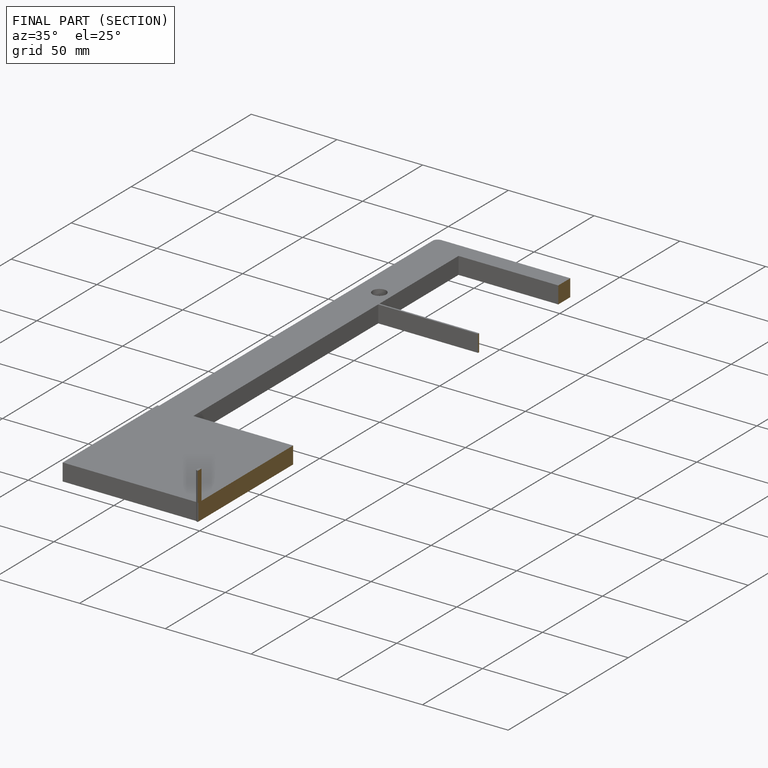
[diagram: finished part — half-section view (interior)]
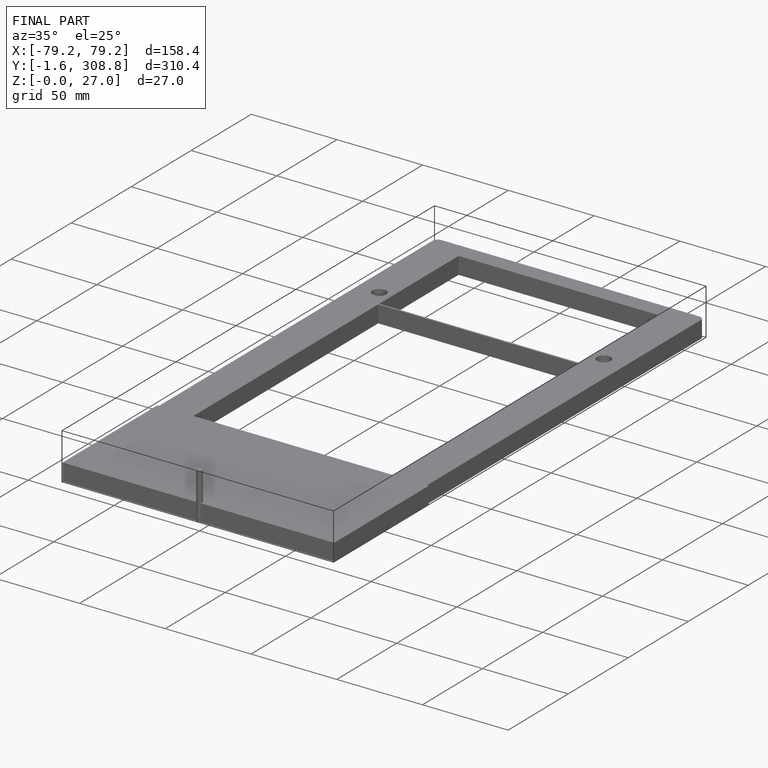
[diagram: finished part — iso view with bounding-box wireframe]
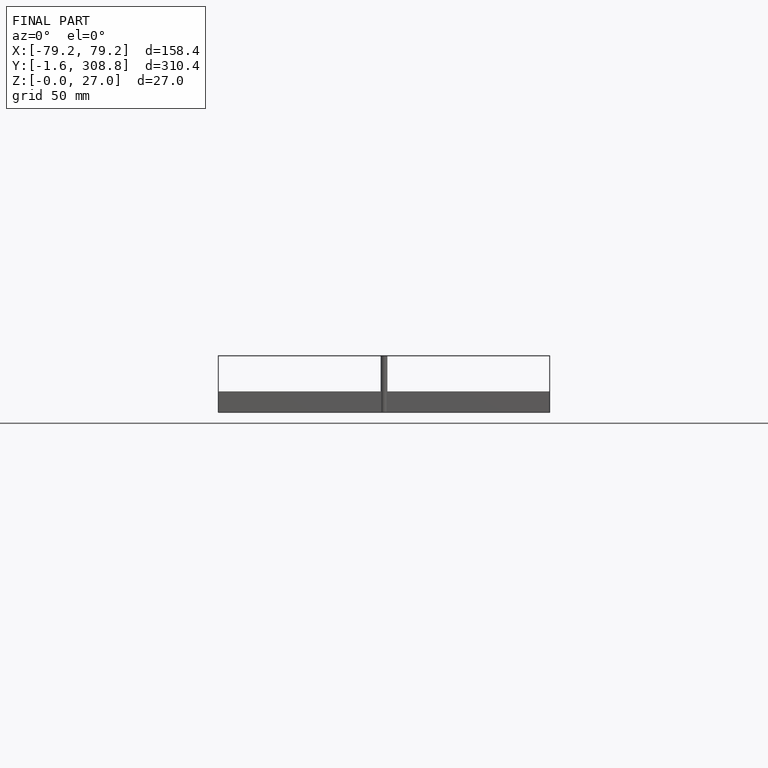
[diagram: finished part — front view with bounding-box wireframe]
